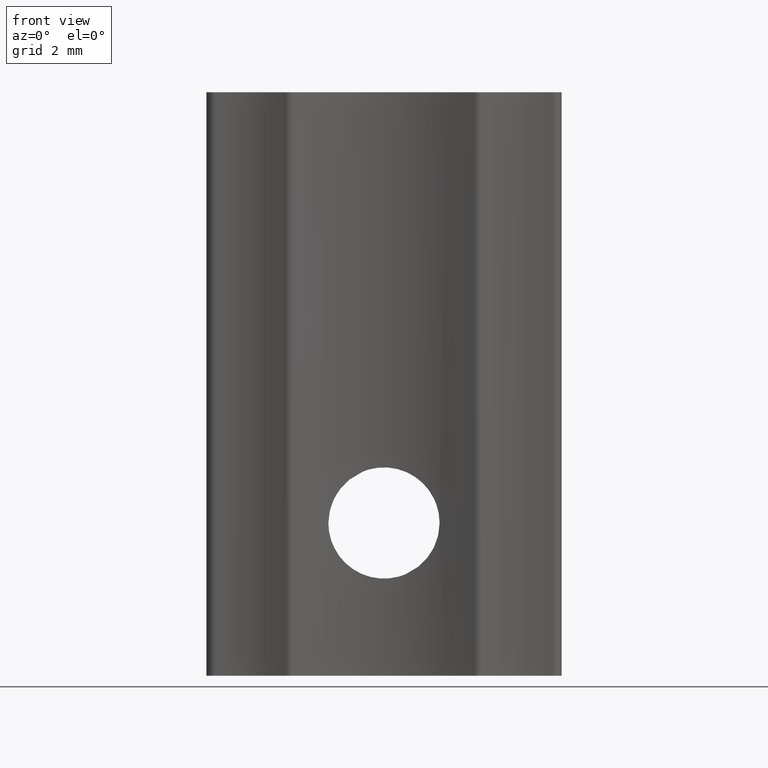
[diagram: clean part render]
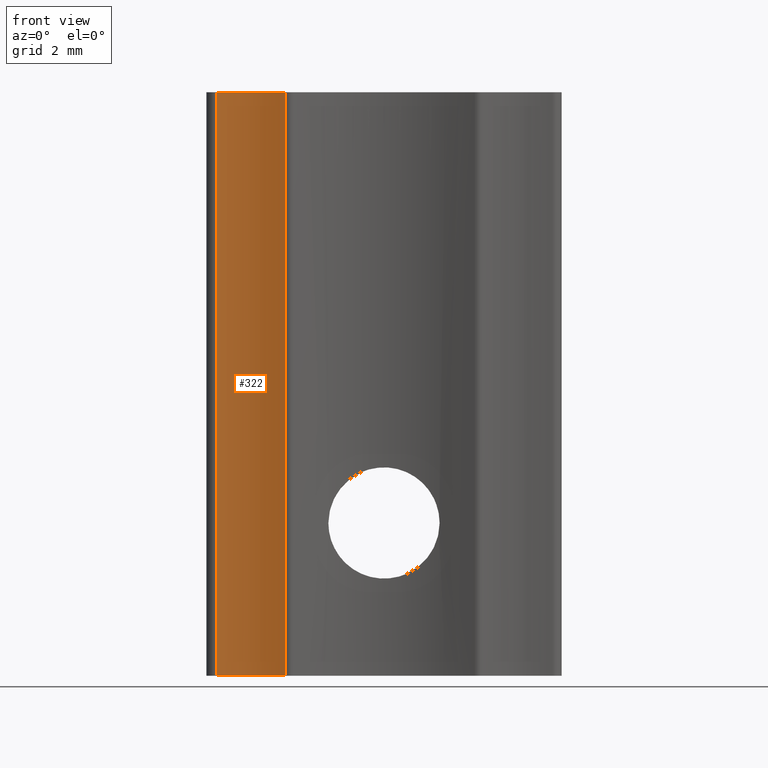
[diagram: same view with one face highlighted and labeled with its STEP entity id]
A machine part, front view. The second image highlights one B-rep face of the part: STEP entity #322.
In plain terms, the highlighted cylindrical surface (partial cylindrical patch) has radius 3 mm, axis along (0, 0, 1).
Its self-contained STEP definition (entity closure, byte-faithful):
#26=LINE('',#696,#41);
#27=LINE('',#702,#42);
#41=VECTOR('',#436,10.);
#42=VECTOR('',#443,10.);
#53=CYLINDRICAL_SURFACE('',#370,3.);
#82=FACE_OUTER_BOUND('',#99,.T.);
#99=EDGE_LOOP('',(#265,#266,#267,#268));
#117=CIRCLE('',#371,3.);
#118=CIRCLE('',#372,3.);
#153=VERTEX_POINT('',#690);
#155=VERTEX_POINT('',#694);
#156=VERTEX_POINT('',#698);
#157=VERTEX_POINT('',#700);
#196=EDGE_CURVE('',#153,#155,#26,.T.);
#197=EDGE_CURVE('',#153,#156,#117,.T.);
#198=EDGE_CURVE('',#157,#155,#118,.T.);
#199=EDGE_CURVE('',#156,#157,#27,.T.);
#265=ORIENTED_EDGE('',*,*,#197,.F.);
#266=ORIENTED_EDGE('',*,*,#196,.T.);
#267=ORIENTED_EDGE('',*,*,#198,.F.);
#268=ORIENTED_EDGE('',*,*,#199,.F.);
#322=ADVANCED_FACE('',(#82),#53,.F.);
#370=AXIS2_PLACEMENT_3D('',#697,#437,#438);
#371=AXIS2_PLACEMENT_3D('',#699,#439,#440);
#372=AXIS2_PLACEMENT_3D('',#701,#441,#442);
#436=DIRECTION('',(0.,0.,1.));
#437=DIRECTION('center_axis',(0.,0.,1.));
#438=DIRECTION('ref_axis',(0.499578080536772,0.866268862101827,0.));
#439=DIRECTION('center_axis',(0.,0.,1.));
#440=DIRECTION('ref_axis',(0.499578080536772,0.866268862101827,0.));
#441=DIRECTION('center_axis',(0.,0.,-1.));
#442=DIRECTION('ref_axis',(0.499578080536772,0.866268862101827,0.));
#443=DIRECTION('',(0.,0.,1.));
#690=CARTESIAN_POINT('',(-2.87489452013419,-0.604081135364544,0.));
#694=CARTESIAN_POINT('',(-2.87489452013419,-0.604081135364544,17.));
#696=CARTESIAN_POINT('',(-2.87489452013419,-0.604081135364544,0.));
#697=CARTESIAN_POINT('Origin',(-4.37362876174451,-3.20288772167003,0.));
#698=CARTESIAN_POINT('',(-4.8825868278265,-0.246375978590002,0.));
#699=CARTESIAN_POINT('Origin',(-4.37362876174451,-3.20288772167003,0.));
#700=CARTESIAN_POINT('',(-4.8825868278265,-0.246375978590002,17.));
#701=CARTESIAN_POINT('Origin',(-4.37362876174451,-3.20288772167003,17.));
#702=CARTESIAN_POINT('',(-4.8825868278265,-0.246375978590002,0.));